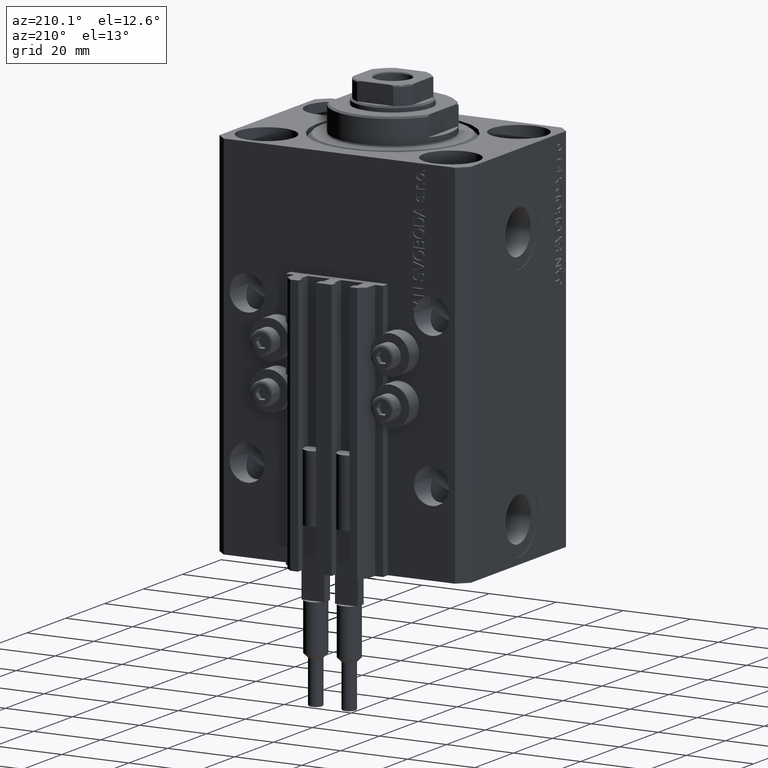
[diagram: clean part render]
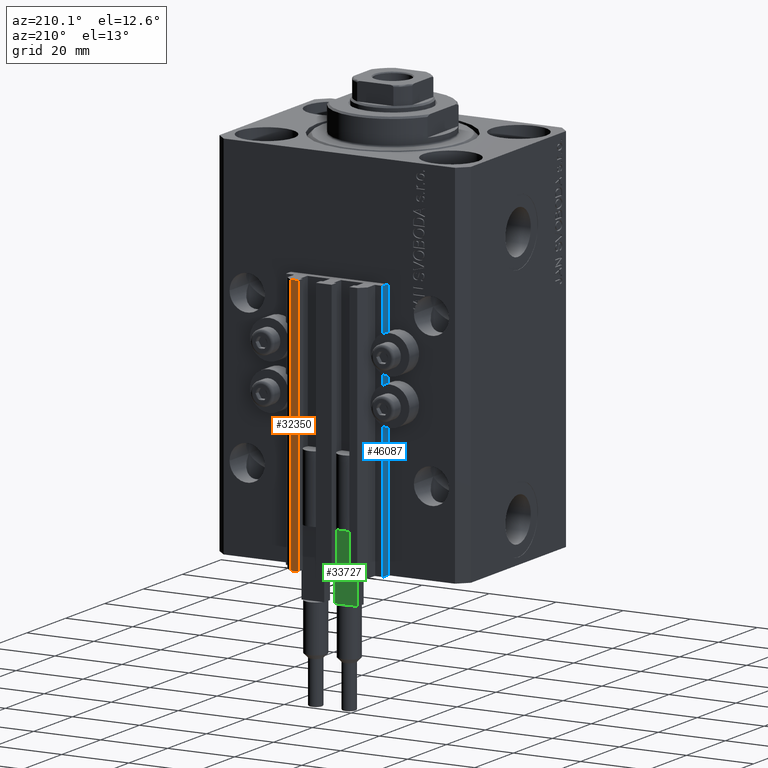
[diagram: same view with three faces highlighted in distinct colors, each labeled with its STEP entity id]
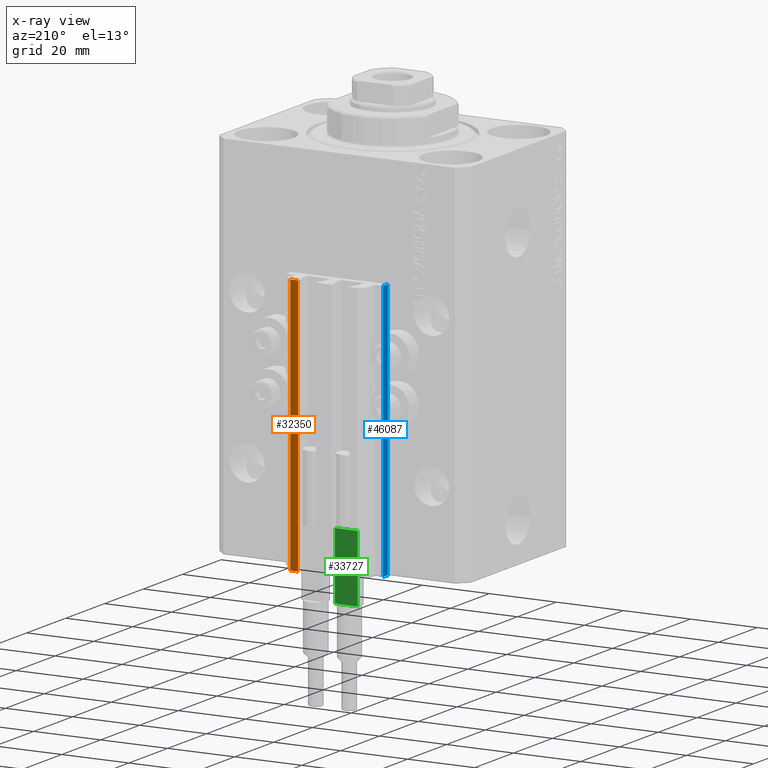
[diagram: x-ray of the same camera — body ghosted, the three highlighted faces saturated]
A machine part, auxiliary view with three faces highlighted in distinct colors.
The next image is the same camera in x-ray (body ghosted, the three faces saturated) — at least one of them is partly hidden behind the body in this view.
Their STEP definitions:

[orange] entity #32350 — the highlighted planar face has unit normal (0, 1, 0).
#760 = DIRECTION ( 'NONE',  ( -1.000000000000000000, 0.000000000000000000, 0.000000000000000000 ) ) ;
#2925 = EDGE_CURVE ( 'NONE', #20105, #36230, #5126, .T. ) ;
#4409 = CARTESIAN_POINT ( 'NONE',  ( 9.999999999999998224, 35.50000000000001421, -110.0000000000000000 ) ) ;
#5085 = DIRECTION ( 'NONE',  ( -1.000000000000000000, 0.000000000000000000, 0.000000000000000000 ) ) ;
#5126 = LINE ( 'NONE', #4409, #45994 ) ;
#5223 = DIRECTION ( 'NONE',  ( 0.000000000000000000, 1.000000000000000000, -0.000000000000000000 ) ) ;
#6368 = CARTESIAN_POINT ( 'NONE',  ( 7.649999999999998579, 35.50000000000001421, -110.0000000000000000 ) ) ;
#6592 = VECTOR ( 'NONE', #41790, 1000.000000000000000 ) ;
#6809 = ORIENTED_EDGE ( 'NONE', *, *, #2925, .T. ) ;
#8255 = VERTEX_POINT ( 'NONE', #46967 ) ;
#9691 = EDGE_CURVE ( 'NONE', #36230, #8255, #30595, .T. ) ;
#12072 = EDGE_CURVE ( 'NONE', #20105, #22448, #34678, .T. ) ;
#12500 = CARTESIAN_POINT ( 'NONE',  ( 9.999999999999998224, 35.50000000000001421, -110.0000000000000000 ) ) ;
#13007 = ORIENTED_EDGE ( 'NONE', *, *, #9691, .T. ) ;
#13694 = ORIENTED_EDGE ( 'NONE', *, *, #12072, .F. ) ;
#13695 = CARTESIAN_POINT ( 'NONE',  ( 9.999999999999998224, 35.50000000000001421, -110.0000000000000000 ) ) ;
#17674 = AXIS2_PLACEMENT_3D ( 'NONE', #20103, #5223, #23516 ) ;
#20103 = CARTESIAN_POINT ( 'NONE',  ( 9.999999999999998224, 35.50000000000001421, -110.0000000000000000 ) ) ;
#20105 = VERTEX_POINT ( 'NONE', #13695 ) ;
#22237 = VECTOR ( 'NONE', #42219, 1000.000000000000000 ) ;
#22448 = VERTEX_POINT ( 'NONE', #33005 ) ;
#23280 = FACE_OUTER_BOUND ( 'NONE', #34492, .T. ) ;
#23516 = DIRECTION ( 'NONE',  ( 0.000000000000000000, 0.000000000000000000, 1.000000000000000000 ) ) ;
#23616 = LINE ( 'NONE', #37754, #28782 ) ;
#27952 = EDGE_CURVE ( 'NONE', #22448, #8255, #23616, .T. ) ;
#28782 = VECTOR ( 'NONE', #5085, 1000.000000000000000 ) ;
#30595 = LINE ( 'NONE', #6368, #6592 ) ;
#32350 = ADVANCED_FACE ( 'NONE', ( #23280 ), #45657, .T. ) ;
#33005 = CARTESIAN_POINT ( 'NONE',  ( 9.999999999999998224, 35.50000000000001421, -33.00000000000000000 ) ) ;
#34492 = EDGE_LOOP ( 'NONE', ( #47998, #13694, #6809, #13007 ) ) ;
#34678 = LINE ( 'NONE', #12500, #22237 ) ;
#36230 = VERTEX_POINT ( 'NONE', #41716 ) ;
#37754 = CARTESIAN_POINT ( 'NONE',  ( 9.999999999999998224, 35.50000000000001421, -33.00000000000000000 ) ) ;
#41716 = CARTESIAN_POINT ( 'NONE',  ( 7.649999999999998579, 35.50000000000001421, -110.0000000000000000 ) ) ;
#41790 = DIRECTION ( 'NONE',  ( 0.000000000000000000, 0.000000000000000000, 1.000000000000000000 ) ) ;
#42219 = DIRECTION ( 'NONE',  ( 0.000000000000000000, 0.000000000000000000, 1.000000000000000000 ) ) ;
#45657 = PLANE ( 'NONE',  #17674 ) ;
#45994 = VECTOR ( 'NONE', #760, 1000.000000000000000 ) ;
#46967 = CARTESIAN_POINT ( 'NONE',  ( 7.649999999999998579, 35.50000000000001421, -33.00000000000000000 ) ) ;
#47998 = ORIENTED_EDGE ( 'NONE', *, *, #27952, .F. ) ;

[blue] entity #46087 — the highlighted planar face has unit normal (-1, 0, 0).
#767 = CARTESIAN_POINT ( 'NONE',  ( -14.50000000000000000, 29.99999999999999289, -110.0000000000000000 ) ) ;
#1784 = DIRECTION ( 'NONE',  ( 0.000000000000000000, 0.000000000000000000, 1.000000000000000000 ) ) ;
#2025 = CARTESIAN_POINT ( 'NONE',  ( -14.50000000000000000, 29.99999999999999289, -110.0000000000000000 ) ) ;
#2238 = EDGE_CURVE ( 'NONE', #10150, #3241, #4639, .T. ) ;
#3241 = VERTEX_POINT ( 'NONE', #6561 ) ;
#4639 = LINE ( 'NONE', #28026, #8690 ) ;
#6561 = CARTESIAN_POINT ( 'NONE',  ( -14.50000000000000000, 27.50000000000000355, -33.00000000000000000 ) ) ;
#7495 = ORIENTED_EDGE ( 'NONE', *, *, #2238, .F. ) ;
#8476 = ORIENTED_EDGE ( 'NONE', *, *, #39984, .T. ) ;
#8690 = VECTOR ( 'NONE', #16813, 1000.000000000000000 ) ;
#10150 = VERTEX_POINT ( 'NONE', #39704 ) ;
#10608 = CARTESIAN_POINT ( 'NONE',  ( -14.50000000000000000, 27.50000000000000355, -110.0000000000000000 ) ) ;
#10833 = LINE ( 'NONE', #29106, #18618 ) ;
#11387 = ORIENTED_EDGE ( 'NONE', *, *, #20918, .T. ) ;
#12989 = DIRECTION ( 'NONE',  ( -1.000000000000000000, 0.000000000000000000, 0.000000000000000000 ) ) ;
#13051 = ORIENTED_EDGE ( 'NONE', *, *, #37948, .F. ) ;
#13471 = FACE_OUTER_BOUND ( 'NONE', #45809, .T. ) ;
#15924 = VERTEX_POINT ( 'NONE', #40034 ) ;
#16813 = DIRECTION ( 'NONE',  ( 0.000000000000000000, -1.000000000000000000, 0.000000000000000000 ) ) ;
#18612 = LINE ( 'NONE', #32982, #45743 ) ;
#18618 = VECTOR ( 'NONE', #25940, 1000.000000000000000 ) ;
#19555 = AXIS2_PLACEMENT_3D ( 'NONE', #2025, #12989, #1784 ) ;
#20918 = EDGE_CURVE ( 'NONE', #15924, #34140, #37084, .T. ) ;
#23996 = VECTOR ( 'NONE', #25882, 1000.000000000000000 ) ;
#25882 = DIRECTION ( 'NONE',  ( 0.000000000000000000, -1.000000000000000000, 0.000000000000000000 ) ) ;
#25940 = DIRECTION ( 'NONE',  ( 0.000000000000000000, 0.000000000000000000, 1.000000000000000000 ) ) ;
#28026 = CARTESIAN_POINT ( 'NONE',  ( -14.50000000000000000, 29.99999999999999289, -33.00000000000000000 ) ) ;
#28104 = PLANE ( 'NONE',  #19555 ) ;
#29106 = CARTESIAN_POINT ( 'NONE',  ( -14.50000000000000000, 27.50000000000000355, -110.0000000000000000 ) ) ;
#32982 = CARTESIAN_POINT ( 'NONE',  ( -14.50000000000000000, 29.99999999999999289, -110.0000000000000000 ) ) ;
#34140 = VERTEX_POINT ( 'NONE', #10608 ) ;
#37084 = LINE ( 'NONE', #767, #23996 ) ;
#37948 = EDGE_CURVE ( 'NONE', #15924, #10150, #18612, .T. ) ;
#39704 = CARTESIAN_POINT ( 'NONE',  ( -14.50000000000000000, 29.99999999999999289, -33.00000000000000000 ) ) ;
#39984 = EDGE_CURVE ( 'NONE', #34140, #3241, #10833, .T. ) ;
#40034 = CARTESIAN_POINT ( 'NONE',  ( -14.50000000000000000, 29.99999999999999289, -110.0000000000000000 ) ) ;
#43446 = DIRECTION ( 'NONE',  ( 0.000000000000000000, 0.000000000000000000, 1.000000000000000000 ) ) ;
#45743 = VECTOR ( 'NONE', #43446, 1000.000000000000000 ) ;
#45809 = EDGE_LOOP ( 'NONE', ( #7495, #13051, #11387, #8476 ) ) ;
#46087 = ADVANCED_FACE ( 'NONE', ( #13471 ), #28104, .T. ) ;

[green] entity #33727 — the highlighted planar face has unit normal (0, -1, 0).
#34 = VERTEX_POINT ( 'NONE', #8180 ) ;
#70 = ORIENTED_EDGE ( 'NONE', *, *, #10897, .F. ) ;
#124 = VERTEX_POINT ( 'NONE', #2316 ) ;
#2316 = CARTESIAN_POINT ( 'NONE',  ( 2.883140648667699146, 1.500000000000000000, 40.00000000000000000 ) ) ;
#3212 = DIRECTION ( 'NONE',  ( -1.000000000000000000, -0.000000000000000000, -0.000000000000000000 ) ) ;
#4955 = LINE ( 'NONE', #19357, #34946 ) ;
#6613 = CARTESIAN_POINT ( 'NONE',  ( -3.399999999999999911, 1.500000000000000000, 20.00000000000000000 ) ) ;
#7037 = EDGE_CURVE ( 'NONE', #16716, #124, #48167, .T. ) ;
#7397 = LINE ( 'NONE', #33478, #14688 ) ;
#8167 = CARTESIAN_POINT ( 'NONE',  ( 3.051229260478471428, 1.500000000000000000, 20.00000000000000000 ) ) ;
#8180 = CARTESIAN_POINT ( 'NONE',  ( -3.399999999999999911, 1.500000000000000000, 40.00000000000000000 ) ) ;
#9126 = CARTESIAN_POINT ( 'NONE',  ( -3.399999999999999911, 1.500000000000000000, 40.00000000000000000 ) ) ;
#9672 = DIRECTION ( 'NONE',  ( -0.000000000000000000, -0.000000000000000000, -1.000000000000000000 ) ) ;
#10747 = ORIENTED_EDGE ( 'NONE', *, *, #40103, .F. ) ;
#10897 = EDGE_CURVE ( 'NONE', #41491, #34, #42264, .T. ) ;
#11850 = CARTESIAN_POINT ( 'NONE',  ( -3.399999999999999911, 1.500000000000000000, 40.00000000000000000 ) ) ;
#13268 = DIRECTION ( 'NONE',  ( -1.000000000000000000, -0.000000000000000000, -0.000000000000000000 ) ) ;
#13323 = LINE ( 'NONE', #28195, #34711 ) ;
#13490 = VECTOR ( 'NONE', #33567, 1000.000000000000000 ) ;
#14688 = VECTOR ( 'NONE', #37365, 1000.000000000000000 ) ;
#15688 = DIRECTION ( 'NONE',  ( -0.000000000000000000, -0.000000000000000000, -1.000000000000000000 ) ) ;
#16716 = VERTEX_POINT ( 'NONE', #36269 ) ;
#18056 = LINE ( 'NONE', #45056, #37081 ) ;
#18472 = AXIS2_PLACEMENT_3D ( 'NONE', #11850, #37927, #33796 ) ;
#18875 = EDGE_CURVE ( 'NONE', #44255, #42689, #43825, .T. ) ;
#19357 = CARTESIAN_POINT ( 'NONE',  ( -3.399999999999999911, 1.500000000000000000, 40.00000000000000000 ) ) ;
#21442 = CARTESIAN_POINT ( 'NONE',  ( -3.399999999999999911, 1.500000000000000000, 20.00000000000000000 ) ) ;
#26077 = DIRECTION ( 'NONE',  ( -1.000000000000000000, -0.000000000000000000, -0.000000000000000000 ) ) ;
#26381 = ORIENTED_EDGE ( 'NONE', *, *, #30023, .T. ) ;
#26498 = EDGE_CURVE ( 'NONE', #124, #41491, #7397, .T. ) ;
#28195 = CARTESIAN_POINT ( 'NONE',  ( 3.400000000000000355, 1.500000000000000000, 40.00000000000000000 ) ) ;
#28581 = VECTOR ( 'NONE', #32879, 1000.000000000000000 ) ;
#28862 = EDGE_LOOP ( 'NONE', ( #43378, #32906, #45084, #10747, #70, #34385, #48132, #26381 ) ) ;
#30023 = EDGE_CURVE ( 'NONE', #16716, #30940, #13323, .T. ) ;
#30145 = CARTESIAN_POINT ( 'NONE',  ( -3.399999999999999911, 1.500000000000000000, 40.00000000000000000 ) ) ;
#30192 = VERTEX_POINT ( 'NONE', #8167 ) ;
#30432 = VECTOR ( 'NONE', #3212, 1000.000000000000000 ) ;
#30629 = PLANE ( 'NONE',  #18472 ) ;
#30940 = VERTEX_POINT ( 'NONE', #31412 ) ;
#31412 = CARTESIAN_POINT ( 'NONE',  ( 3.400000000000000355, 1.500000000000000000, 20.00000000000000000 ) ) ;
#31685 = EDGE_CURVE ( 'NONE', #30940, #30192, #18056, .T. ) ;
#32263 = CARTESIAN_POINT ( 'NONE',  ( -3.399999999999999911, 1.500000000000000000, 20.00000000000000000 ) ) ;
#32879 = DIRECTION ( 'NONE',  ( -1.000000000000000000, -0.000000000000000000, -0.000000000000000000 ) ) ;
#32906 = ORIENTED_EDGE ( 'NONE', *, *, #44498, .T. ) ;
#33177 = LINE ( 'NONE', #6613, #30432 ) ;
#33478 = CARTESIAN_POINT ( 'NONE',  ( -3.399999999999999911, 1.500000000000000000, 40.00000000000000000 ) ) ;
#33567 = DIRECTION ( 'NONE',  ( -1.000000000000000000, -0.000000000000000000, -0.000000000000000000 ) ) ;
#33727 = ADVANCED_FACE ( 'NONE', ( #40867 ), #30629, .F. ) ;
#33796 = DIRECTION ( 'NONE',  ( 0.000000000000000000, -0.000000000000000000, -1.000000000000000000 ) ) ;
#34385 = ORIENTED_EDGE ( 'NONE', *, *, #26498, .F. ) ;
#34711 = VECTOR ( 'NONE', #9672, 1000.000000000000000 ) ;
#34946 = VECTOR ( 'NONE', #15688, 1000.000000000000000 ) ;
#34969 = CARTESIAN_POINT ( 'NONE',  ( -3.051229260478471428, 1.500000000000000000, 20.00000000000000000 ) ) ;
#36269 = CARTESIAN_POINT ( 'NONE',  ( 3.400000000000000355, 1.500000000000000000, 40.00000000000000000 ) ) ;
#36976 = VECTOR ( 'NONE', #13268, 1000.000000000000000 ) ;
#37081 = VECTOR ( 'NONE', #26077, 1000.000000000000000 ) ;
#37365 = DIRECTION ( 'NONE',  ( -1.000000000000000000, -0.000000000000000000, -0.000000000000000000 ) ) ;
#37927 = DIRECTION ( 'NONE',  ( 0.000000000000000000, -1.000000000000000000, 0.000000000000000000 ) ) ;
#40103 = EDGE_CURVE ( 'NONE', #34, #42689, #4955, .T. ) ;
#40867 = FACE_OUTER_BOUND ( 'NONE', #28862, .T. ) ;
#41491 = VERTEX_POINT ( 'NONE', #43499 ) ;
#42264 = LINE ( 'NONE', #9126, #36976 ) ;
#42689 = VERTEX_POINT ( 'NONE', #32263 ) ;
#43378 = ORIENTED_EDGE ( 'NONE', *, *, #31685, .T. ) ;
#43499 = CARTESIAN_POINT ( 'NONE',  ( -2.883140648667699146, 1.500000000000000000, 40.00000000000000000 ) ) ;
#43825 = LINE ( 'NONE', #21442, #28581 ) ;
#44255 = VERTEX_POINT ( 'NONE', #34969 ) ;
#44498 = EDGE_CURVE ( 'NONE', #30192, #44255, #33177, .T. ) ;
#45056 = CARTESIAN_POINT ( 'NONE',  ( -3.399999999999999911, 1.500000000000000000, 20.00000000000000000 ) ) ;
#45084 = ORIENTED_EDGE ( 'NONE', *, *, #18875, .T. ) ;
#48132 = ORIENTED_EDGE ( 'NONE', *, *, #7037, .F. ) ;
#48167 = LINE ( 'NONE', #30145, #13490 ) ;